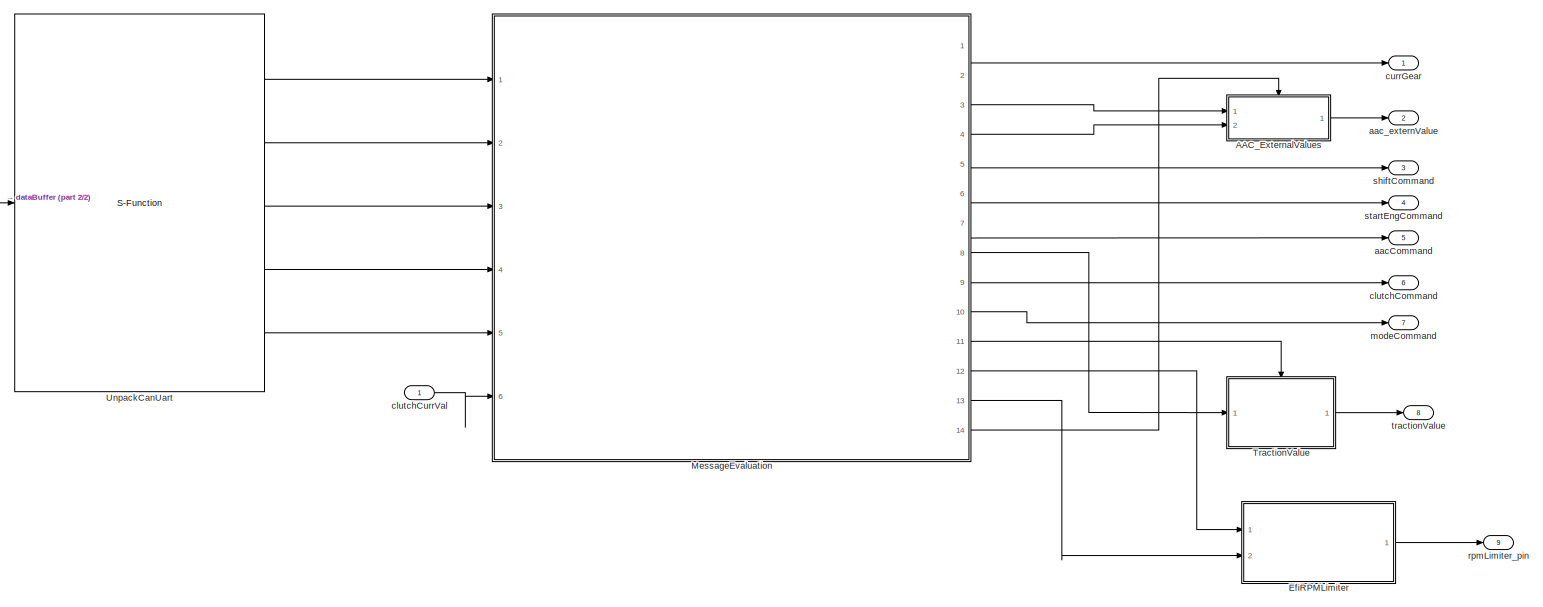
[diagram: root canvas - part 1/2, most of the canvas]
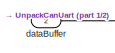
[diagram: root canvas - part 2/2, middle left region]
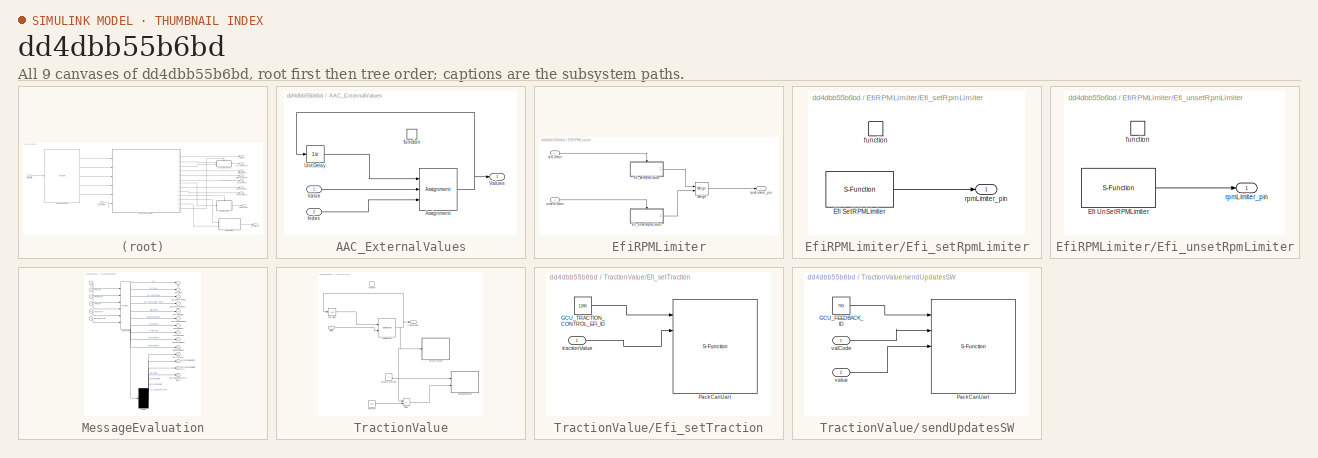
[diagram: thumbnail index - all 9 canvases of the model, root first then tree order]
MODEL slx_dd4dbb55b6bd
KIND model
CONFIG AbsTol = auto
CONFIG EnableMultiTasking = off
CONFIG FixedStep = 0.01
CONFIG MaxStep = auto
CONFIG MinStep = auto
CONFIG RelTol = 1e-3
CONFIG SampleTimeConstraint = Unconstrained
CONFIG Solver = FixedStepAuto
CONFIG SolverName = FixedStepAuto
CONFIG StartTime = 0.0
CONFIG StopTime = 10.0
BLOCK [SubSystem] AAC_ExternalValues
  Ports = [2, 1, 0, 1]
  RequestExecContextInheritance = off
  TreatAsAtomicUnit = on
BLOCK [Assignment] AAC_ExternalValues/Assignment
  DiagnosticForDimensions = Warning
  IndexMode = Zero-based
  IndexOptions = Index vector (port)
  Indices = 1
  OutputSizes = 1
  Ports = [3, 1]
BLOCK [Inport] AAC_ExternalValues/Index
  IconDisplay = Port number
  Port = 2
BLOCK [UnitDelay] AAC_ExternalValues/Unit Delay
  InitialCondition = [0,0,0]
  InputProcessing = Elements as channels (sample based)
  SampleTime = -1
BLOCK [Inport] AAC_ExternalValues/Value
  IconDisplay = Port number
BLOCK [Outport] AAC_ExternalValues/Values
  IconDisplay = Port number
BLOCK [TriggerPort] AAC_ExternalValues/function
  Ports = []
  StatesWhenEnabling = held
  TriggerType = function-call
  VariantControl = Variant
BLOCK [SubSystem] EfiRPMLimiter
  Ports = [2, 1]
  RequestExecContextInheritance = off
BLOCK [SubSystem] EfiRPMLimiter/Efi_setRpmLimiter
  Ports = [0, 1, 0, 1]
  RequestExecContextInheritance = off
  TreatAsAtomicUnit = on
BLOCK [S-Function] EfiRPMLimiter/Efi_setRpmLimiter/Efi SetRPMLimiter
  EnableBusSupport = off
  FunctionName = Efi_setRPMLimiter
  Ports = [0, 1]
  SFcnIsStateOwnerBlock = off
  SFunctionDeploymentMode = off
BLOCK [TriggerPort] EfiRPMLimiter/Efi_setRpmLimiter/function
  Ports = []
  StatesWhenEnabling = held
  TriggerType = function-call
  VariantControl = Variant
BLOCK [Outport] EfiRPMLimiter/Efi_setRpmLimiter/rpmLimiter_pin
  IconDisplay = Port number
BLOCK [SubSystem] EfiRPMLimiter/Efi_unsetRpmLimiter
  Ports = [0, 1, 0, 1]
  RequestExecContextInheritance = off
  TreatAsAtomicUnit = on
BLOCK [S-Function] EfiRPMLimiter/Efi_unsetRpmLimiter/Efi UnSetRPMLimiter
  EnableBusSupport = off
  FunctionName = Efi_unsetRPMLimiter
  Ports = [0, 1]
  SFcnIsStateOwnerBlock = off
  SFunctionDeploymentMode = off
BLOCK [TriggerPort] EfiRPMLimiter/Efi_unsetRpmLimiter/function
  Ports = []
  StatesWhenEnabling = held
  TriggerType = function-call
  VariantControl = Variant
BLOCK [Outport] EfiRPMLimiter/Efi_unsetRpmLimiter/rpmLimiter_pin
  IconDisplay = Port number
BLOCK [Merge] EfiRPMLimiter/Merge
  Ports = [2, 1]
BLOCK [Outport] EfiRPMLimiter/rpmLimiter_pin
  IconDisplay = Port number
BLOCK [Inport] EfiRPMLimiter/setLimiter
  IconDisplay = Port number
BLOCK [Inport] EfiRPMLimiter/unsetLimiter
  IconDisplay = Port number
  Port = 2
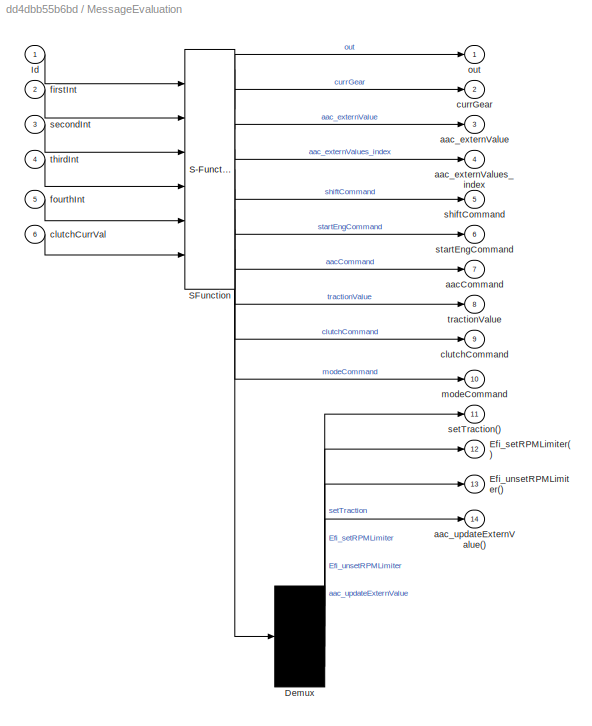
BLOCK [SubSystem] MessageEvaluation
  ErrorFcn = Stateflow.Translate.translate
  PermitHierarchicalResolution = ExplicitOnly
  Ports = [6, 14]
  RequestExecContextInheritance = off
  SFBlockType = Chart
  SystemSampleTime = 0.01
  TreatAsAtomicUnit = on
BLOCK [Demux] MessageEvaluation/ Demux 
  Ports = [1, 4]
BLOCK [S-Function] MessageEvaluation/ SFunction 
  EnableBusSupport = on
  FunctionName = sf_sfun
  PortCounts = [6 11]
  Ports = [6, 11]
  SFcnIsStateOwnerBlock = off
  SFunctionDeploymentMode = off
  Tag = Stateflow S-Function GCU_CAN 3
BLOCK [Outport] MessageEvaluation/Efi_setRPMLimiter()
  IconDisplay = Port number
  Port = 12
BLOCK [Outport] MessageEvaluation/Efi_unsetRPMLimiter()
  IconDisplay = Port number
  Port = 13
BLOCK [Inport] MessageEvaluation/Id
  IconDisplay = Port number
BLOCK [Outport] MessageEvaluation/aacCommand
  IconDisplay = Port number
  Port = 7
BLOCK [Outport] MessageEvaluation/aac_externValue
  IconDisplay = Port number
  Port = 3
BLOCK [Outport] MessageEvaluation/aac_externValues_index
  IconDisplay = Port number
  Port = 4
BLOCK [Outport] MessageEvaluation/aac_updateExternValue()
  IconDisplay = Port number
  Port = 14
BLOCK [Outport] MessageEvaluation/clutchCommand
  IconDisplay = Port number
  Port = 9
BLOCK [Inport] MessageEvaluation/clutchCurrVal
  IconDisplay = Port number
  Port = 6
BLOCK [Outport] MessageEvaluation/currGear
  IconDisplay = Port number
  Port = 2
BLOCK [Inport] MessageEvaluation/firstInt
  IconDisplay = Port number
  Port = 2
BLOCK [Inport] MessageEvaluation/fourthInt
  IconDisplay = Port number
  Port = 5
BLOCK [Outport] MessageEvaluation/modeCommand
  IconDisplay = Port number
  Port = 10
BLOCK [Outport] MessageEvaluation/out
  IconDisplay = Port number
BLOCK [Inport] MessageEvaluation/secondInt
  IconDisplay = Port number
  Port = 3
BLOCK [Outport] MessageEvaluation/setTraction()
  IconDisplay = Port number
  Port = 11
BLOCK [Outport] MessageEvaluation/shiftCommand
  IconDisplay = Port number
  Port = 5
BLOCK [Outport] MessageEvaluation/startEngCommand
  IconDisplay = Port number
  Port = 6
BLOCK [Inport] MessageEvaluation/thirdInt
  IconDisplay = Port number
  Port = 4
BLOCK [Outport] MessageEvaluation/tractionValue
  IconDisplay = Port number
  Port = 8
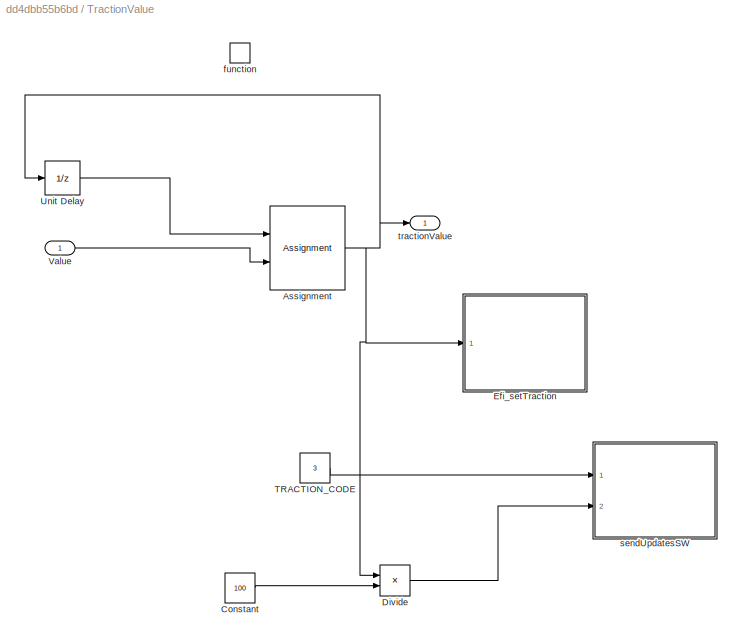
BLOCK [SubSystem] TractionValue
  Ports = [1, 1, 0, 1]
  RequestExecContextInheritance = off
  TreatAsAtomicUnit = on
BLOCK [Assignment] TractionValue/Assignment
  DiagnosticForDimensions = Warning
  IndexMode = Zero-based
  IndexOptions = Index vector (dialog)
  Indices = 0
  OutputSizes = 1
  Ports = [2, 1]
BLOCK [Constant] TractionValue/Constant
  OutDataTypeStr = uint16
  Value = 100
BLOCK [Product] TractionValue/Divide
  InputSameDT = off
  Inputs = */
  OutDataTypeStr = Inherit: Inherit via internal rule
  Ports = [2, 1]
  RndMeth = Floor
  SaturateOnIntegerOverflow = off
BLOCK [SubSystem] TractionValue/Efi_setTraction
  Ports = [1]
  RequestExecContextInheritance = off
BLOCK [Constant] TractionValue/Efi_setTraction/GCU_TRACTION_CONTROL_EFI_ID
  OutDataTypeStr = uint16
  Value = 1280
BLOCK [S-Function] TractionValue/Efi_setTraction/PackCanUart
  EnableBusSupport = off
  FunctionName = PackCanUART
  Ports = [5, 1]
  SFcnIsStateOwnerBlock = off
  SFunctionDeploymentMode = off
BLOCK [Inport] TractionValue/Efi_setTraction/tractionValue
  IconDisplay = Port number
  OutDataTypeStr = uint16
  PortDimensions = 1
  SignalType = real
  VarSizeSig = No
BLOCK [Constant] TractionValue/TRACTION_CODE
  OutDataTypeStr = uint16
  Value = 3
BLOCK [UnitDelay] TractionValue/Unit Delay
  InputProcessing = Elements as channels (sample based)
  SampleTime = -1
BLOCK [Inport] TractionValue/Value
  IconDisplay = Port number
BLOCK [TriggerPort] TractionValue/function
  Ports = []
  StatesWhenEnabling = held
  TriggerType = function-call
  VariantControl = Variant
BLOCK [SubSystem] TractionValue/sendUpdatesSW
  Ports = [2]
  RequestExecContextInheritance = off
BLOCK [Constant] TractionValue/sendUpdatesSW/GCU_FEEDBACK_ID
  OutDataTypeStr = uint16
  Value = 793
BLOCK [S-Function] TractionValue/sendUpdatesSW/PackCanUart
  EnableBusSupport = off
  FunctionName = PackCanUART
  Ports = [5, 1]
  SFcnIsStateOwnerBlock = off
  SFunctionDeploymentMode = off
BLOCK [Inport] TractionValue/sendUpdatesSW/valCode
  IconDisplay = Port number
  OutDataTypeStr = uint16
  PortDimensions = 1
  SignalType = real
  VarSizeSig = No
BLOCK [Inport] TractionValue/sendUpdatesSW/value
  IconDisplay = Port number
  OutDataTypeStr = uint16
  Port = 2
  PortDimensions = 1
  SignalType = real
  VarSizeSig = No
BLOCK [Outport] TractionValue/tractionValue
  IconDisplay = Port number
BLOCK [S-Function] UnpackCanUart
  EnableBusSupport = off
  FunctionName = UnpackCanUART
  Ports = [1, 5]
  SFcnIsStateOwnerBlock = off
  SFunctionDeploymentMode = off
BLOCK [Outport] aacCommand
  IconDisplay = Port number
  Port = 5
BLOCK [Outport] aac_externValue
  IconDisplay = Port number
  Port = 2
BLOCK [Outport] clutchCommand
  IconDisplay = Port number
  Port = 6
BLOCK [Inport] clutchCurrVal
  IconDisplay = Port number
BLOCK [Outport] currGear
  IconDisplay = Port number
BLOCK [Inport] dataBuffer
  IconDisplay = Port number
  Port = 2
BLOCK [Outport] modeCommand
  IconDisplay = Port number
  Port = 7
BLOCK [Outport] rpmLimiter_pin
  IconDisplay = Port number
  Port = 9
BLOCK [Outport] shiftCommand
  IconDisplay = Port number
  Port = 3
BLOCK [Outport] startEngCommand
  IconDisplay = Port number
  Port = 4
BLOCK [Outport] tractionValue
  IconDisplay = Port number
  Port = 8
NET AAC_ExternalValues/Assignment:1 -> AAC_ExternalValues/Unit Delay:1, AAC_ExternalValues/Values:1
LINE AAC_ExternalValues/Index:1 -> AAC_ExternalValues/Assignment:3
LINE AAC_ExternalValues/Unit Delay:1 -> AAC_ExternalValues/Assignment:1
LINE AAC_ExternalValues/Value:1 -> AAC_ExternalValues/Assignment:2
LINE AAC_ExternalValues:1 -> aac_externValue:1
LINE EfiRPMLimiter/Efi_setRpmLimiter/Efi SetRPMLimiter:1 -> EfiRPMLimiter/Efi_setRpmLimiter/rpmLimiter_pin:1
LINE EfiRPMLimiter/Efi_setRpmLimiter:1 -> EfiRPMLimiter/Merge:1
LINE EfiRPMLimiter/Efi_unsetRpmLimiter/Efi UnSetRPMLimiter:1 -> EfiRPMLimiter/Efi_unsetRpmLimiter/rpmLimiter_pin:1
LINE EfiRPMLimiter/Efi_unsetRpmLimiter:1 -> EfiRPMLimiter/Merge:2
LINE EfiRPMLimiter/Merge:1 -> EfiRPMLimiter/rpmLimiter_pin:1
LINE EfiRPMLimiter/setLimiter:1 -> EfiRPMLimiter/Efi_setRpmLimiter:trigger
LINE EfiRPMLimiter/unsetLimiter:1 -> EfiRPMLimiter/Efi_unsetRpmLimiter:trigger
LINE EfiRPMLimiter:1 -> rpmLimiter_pin:1
LINE MessageEvaluation:10 -> modeCommand:1
LINE MessageEvaluation:11 -> TractionValue:trigger
LINE MessageEvaluation:12 -> EfiRPMLimiter:1
LINE MessageEvaluation:13 -> EfiRPMLimiter:2
LINE MessageEvaluation:14 -> AAC_ExternalValues:trigger
LINE MessageEvaluation:2 -> currGear:1
LINE MessageEvaluation:3 -> AAC_ExternalValues:1
LINE MessageEvaluation:4 -> AAC_ExternalValues:2
LINE MessageEvaluation:5 -> shiftCommand:1
LINE MessageEvaluation:6 -> startEngCommand:1
LINE MessageEvaluation:7 -> aacCommand:1
LINE MessageEvaluation:8 -> TractionValue:1
LINE MessageEvaluation:9 -> clutchCommand:1
NET TractionValue/Assignment:1 -> TractionValue/Divide:1, TractionValue/Efi_setTraction:1, TractionValue/Unit Delay:1, TractionValue/tractionValue:1
LINE TractionValue/Constant:1 -> TractionValue/Divide:2
LINE TractionValue/Divide:1 -> TractionValue/sendUpdatesSW:2
LINE TractionValue/Efi_setTraction/GCU_TRACTION_CONTROL_EFI_ID:1 -> TractionValue/Efi_setTraction/PackCanUart:1
LINE TractionValue/Efi_setTraction/tractionValue:1 -> TractionValue/Efi_setTraction/PackCanUart:2
LINE TractionValue/TRACTION_CODE:1 -> TractionValue/sendUpdatesSW:1
LINE TractionValue/Unit Delay:1 -> TractionValue/Assignment:1
LINE TractionValue/Value:1 -> TractionValue/Assignment:2
LINE TractionValue/sendUpdatesSW/GCU_FEEDBACK_ID:1 -> TractionValue/sendUpdatesSW/PackCanUart:1
LINE TractionValue/sendUpdatesSW/valCode:1 -> TractionValue/sendUpdatesSW/PackCanUart:2
LINE TractionValue/sendUpdatesSW/value:1 -> TractionValue/sendUpdatesSW/PackCanUart:3
LINE TractionValue:1 -> tractionValue:1
LINE UnpackCanUart:1 -> MessageEvaluation:1
LINE UnpackCanUart:2 -> MessageEvaluation:2
LINE UnpackCanUart:3 -> MessageEvaluation:3
LINE UnpackCanUart:4 -> MessageEvaluation:4
LINE UnpackCanUart:5 -> MessageEvaluation:5
LINE clutchCurrVal:1 -> MessageEvaluation:6
LINE dataBuffer:1 -> UnpackCanUart:1
note: NET lines group one-source signal fan-out (src -> all destinations, sorted); 1:1 wires keep LINE
CHART MessageEvaluation states=18 transitions=85
  STATE_LABEL 'GEAR_RPM_UPDATE\nentry:\n currGear = firstInt;\n aac_externValues_index = uint16(aac_values.RPM);\n aac_externValue = secondInt;\n send(aac_updateExternValue);'
  STATE_LABEL 'IDLE\n'
  STATE_LABEL 'sendStartEngCommand'
  STATE_LABEL '[startEngCommand >= 255]'
  STATE_LABEL '{startEngCommand = startEngCommand + 1;}'
  STATE_LABEL '{startEngCommand = 0}'
  STATE_LABEL 'START_ENGINE\nentry:\n sendStartEngCommand;'
  STATE_LABEL 'SW_GEARSHIFT'
  STATE_LABEL 'SetLimiter\nentry:\n send(Efi_setRPMLimiter);\n'
  STATE_LABEL 'UnsetLimiter\nentry:\n send(Efi_unsetRPMLimiter);'
  STATE_LABEL 'START_SHIFT\nentry:\n sendShiftCommand(firstInt);\n'
  STATE_LABEL '[firstInt== RPM_LIMITER_ON]'
  STATE_LABEL '[firstInt== RPM_LIMITER_OFF]'
  STATE_LABEL 'SetLimiter\nentry:\n send(Efi_setRPMLimiter);\n'
  STATE_LABEL 'UnsetLimiter\nentry:\n send(Efi_unsetRPMLimiter);'
  STATE_LABEL 'START_SHIFT\nentry:\n sendShiftCommand(firstInt);\n'
  STATE_LABEL 'sendShiftCommand(com)'
  STATE_LABEL '[shiftCommand(1) >= 255]'
  STATE_LABEL '{shiftCommand(1) = shiftCommand(1) + 1}'
  STATE_LABEL '{shiftCommand(1) = 0}'
  STATE_LABEL '{shiftCommand(2) = com}'
  STATE_LABEL '[clutchCurrVal ~= 100]'
  STATE_LABEL '[(com == GEAR_COMMAND_NEUTRAL_UP) || (com == GEAR_COMMAND_NEUTRAL_DOWN) ||  (com == GEAR_COMMAND_DOWN) ]'
  STATE_LABEL '{sendAacCommand(STOP_COM)}'
  STATE_LABEL 'sendClutchCommand(com)'
  STATE_LABEL '[clutchCommand(1) >= 255]'
  STATE_LABEL '{clutchCommand(1) = clutchCommand(1) + 1}'
  STATE_LABEL '{clutchCommand(1) = 0}'
  STATE_LABEL '{clutchCommand(2) = com}'
  STATE_LABEL 'WHEEL_SPEED_UPDATE\nentry:\n aac_externValues_index = uint16(aac_values.WHEEL_SPEED)\n aac_externValue = firstInt/10;\n send(aac_updateExternValue);\n'
  STATE_LABEL 'SET_CLUTCH\nentry:\nclutchSetVal = uint8(bitshift(firstInt, -8));\n'
  STATE_LABEL '[clutchSetVal > AAC_CLUTCH_NOISE_LEVEL]'
  STATE_LABEL '{sendAacCommand(STOP_COM);}'
  STATE_LABEL '{sendClutchCommand(clutchSetVal);}'
  STATE_LABEL 'sendAacCommand(com)'
  STATE_LABEL '[aacCommand(1) >= 255]'
  STATE_LABEL '{aacCommand(1) = aacCommand(1) + 1}'
  STATE_LABEL '{aacCommand(1) = 0}'
  STATE_LABEL '{aacCommand(2) = com}'
  STATE_LABEL 'AAC_COM\n'
